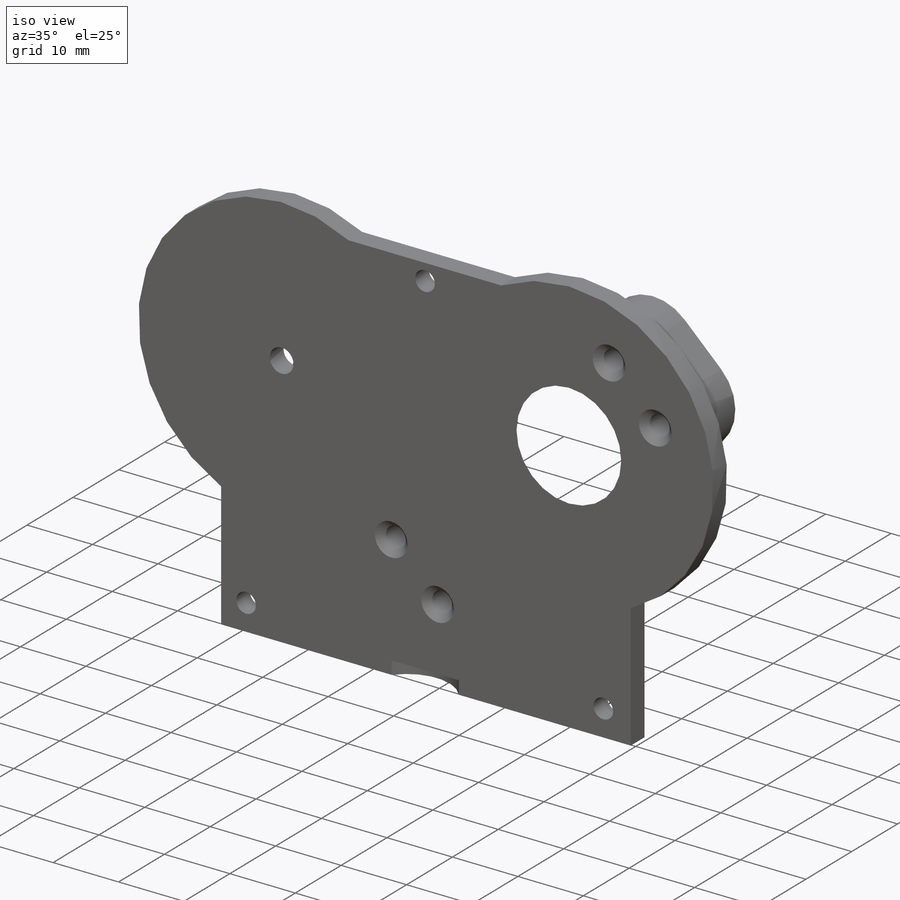
[diagram: iso view]
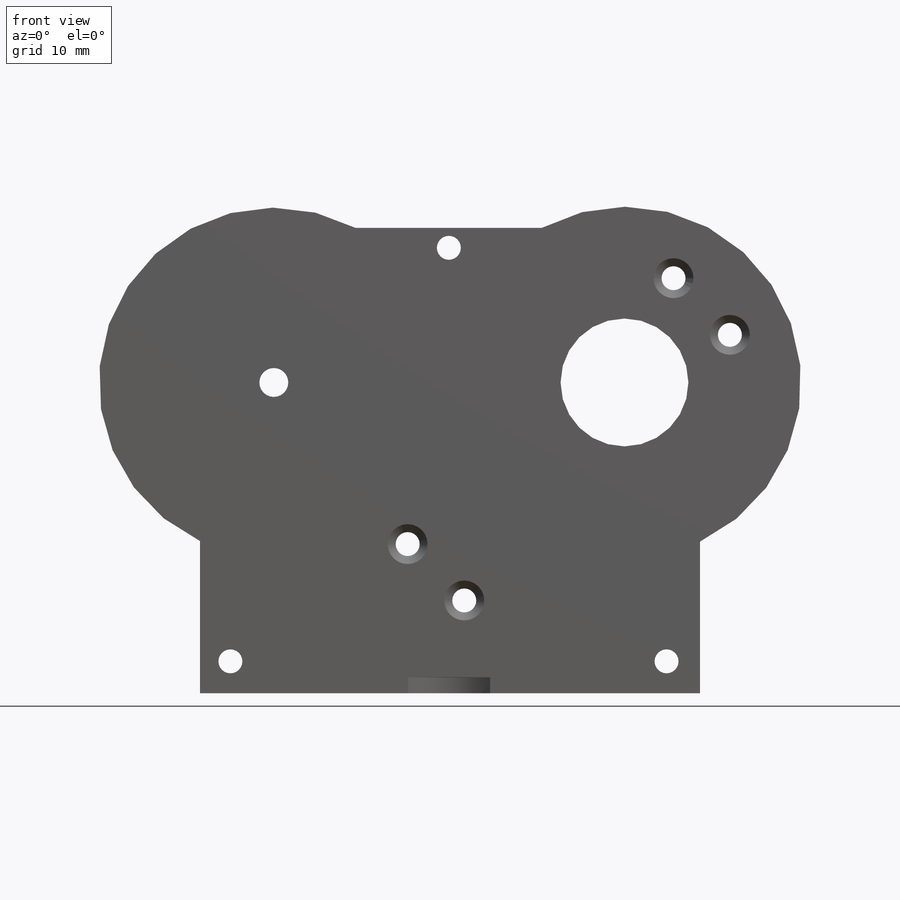
[diagram: front view]
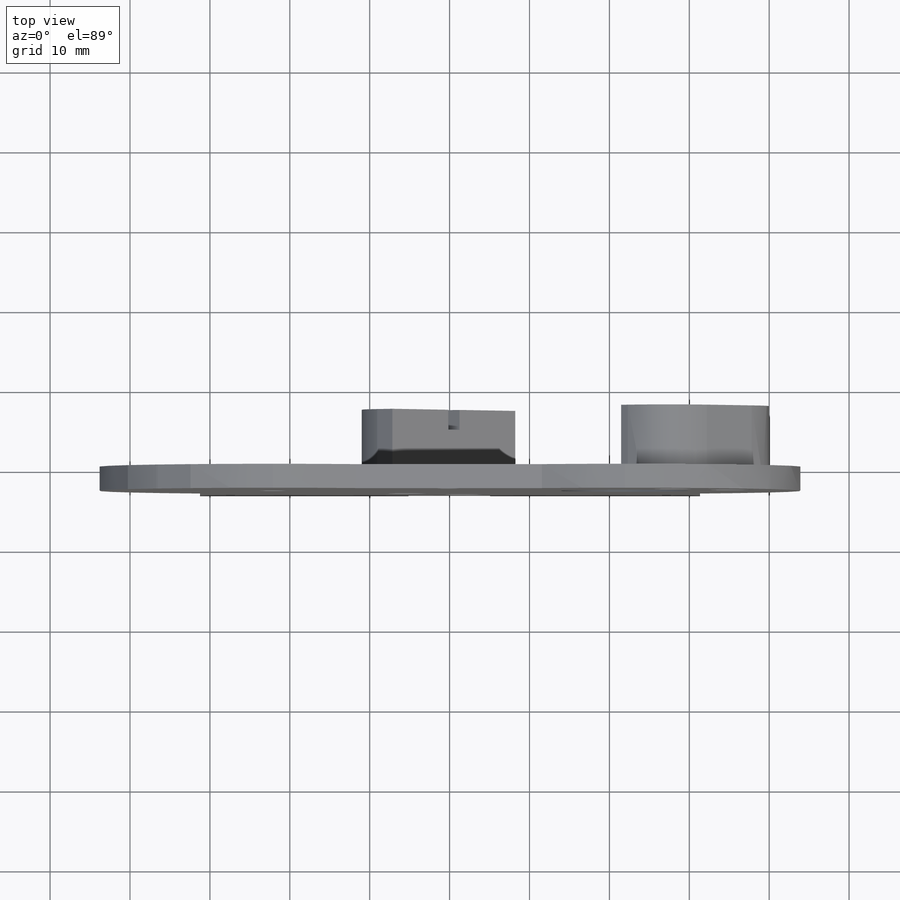
[diagram: top view]
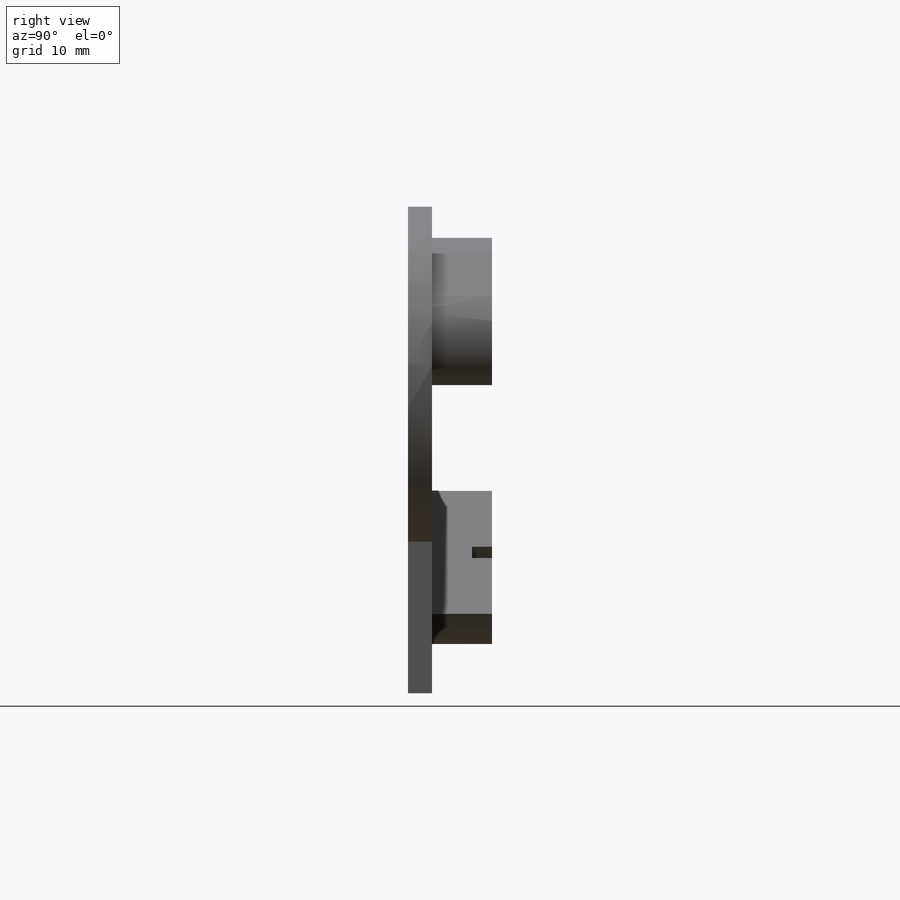
[diagram: right view]
SOLIDWORKS PART (.sldprt)
format: sldprt  version: not decoded by parser v0  size: 488,448 bytes
history: native  units: mm
features: sketch x11, extrude x6, cut_extrude x5, plane x3, chamfer x2, material x1, fillet x1 (+10 scaffold rows collapsed)
feature tree (39):
  scaffold x10  (default folders/planes/origin — collapsed)
  material  "Material <sin especificar>"
  plane  "Alzado"
  plane  "Planta"
  plane  "Vista lateral"
  sketch  "Croquis1"  dims[c1.D1=~3.759052mm c1.D3=20.0mm c2.D1=22.0mm c2.D2=22.0mm]
  extrude  "Base Soporte"  Depth=3mm
  sketch  "Croquis2"  dims[c1.D1=~76.384316mm c2.D1=45.0deg c2.D2=37.0mm c2.D3=17.0mm c2.D4=~11.065089mm c2.D5=~10.781229mm c2.D6=~74.925556mm c3.D4=~10.978311mm]
  cut_extrude  "Cajeado Servo"  [1 undecoded]
  sketch  "Croquis3"  dims[c1.D2=~15.386318mm c2.D2=~0.154142deg c3.D2=~36.171121mm c4.D2=~0.154142deg c5.D2=6.5mm c5.D3=6.5mm c5.D1=2.7mm]
  extrude  "Soportes del Servo"  Depth=11mm
  sketch  "Croquis4"  dims[c1.D2=~2.023565mm c1.D1=47.0mm c2.D2=2.8782mm c2.D3=3.1218mm c2.D4=~37.301618mm c3.D2=~3.167255mm c3.D3=~2.832745mm c4.D2=5.0mm c4.D3=5.0mm c4.D4=5.0mm c4.D5=5.0mm]
  extrude  "Soportes Taladros servo"  Depth=3mm
  sketch  "Croquis5"
  cut_extrude  "Taladros tapa"  [1 undecoded]
  sketch  "Croquis6"
  extrude  "Rectificacion Taladros Servos"  [1 undecoded]
  sketch  "Croquis7"
  cut_extrude  "Suprimir soporte servo"  [1 undecoded]
  sketch  "Croquis8"
  extrude  "Rectificación Soporte servo"  Depth=7.5mm
  fillet  "Redondeo soporte servo"  Radius=7mm
  sketch  "Croquis9"  dims[D1=7.0mm]
  cut_extrude  "Rectif caja soporte servo"  Depth=2.5mm
  sketch  "Croquis10"  dims[D1=~9.114506mm]
  extrude  "Rectificación  hueco servo"  [1 undecoded]
  chamfer  "Chaflán hueco servo"  Distance=4mm Angle=45deg
  chamfer  "Chaflán Taladros servo"  Distance=1mm Angle=45deg
  sketch  "Croquis11"  dims[D2=~5.576862mm D1=4.0mm]
  cut_extrude  "Caja servo exterior"  Depth=2mm
decode coverage: 16 of 25 modeling features carry decoded parameters
note: ~ marks probable driven/reference dimensions
note: 5 parameter values undecoded
summary: no parameter record found for 5 features
note: suppression state not decoded; provenance and decode notes live in map.json
